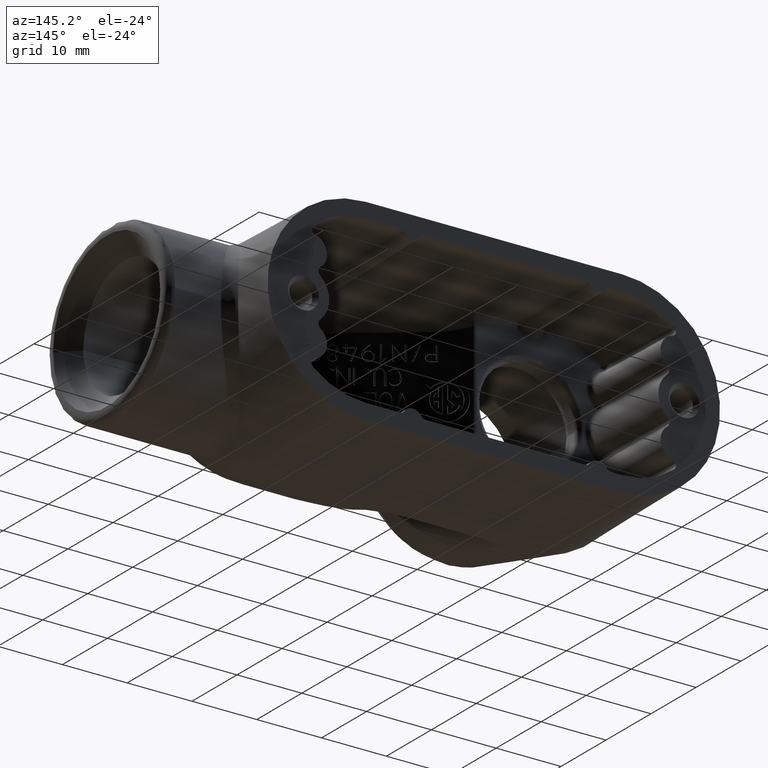
[diagram: clean part render]
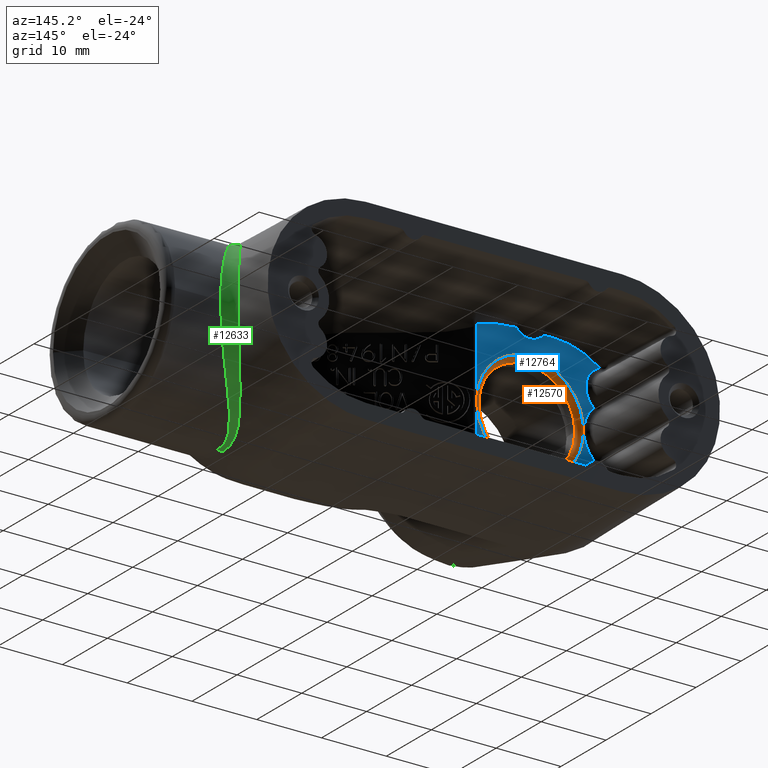
[diagram: same view with three faces highlighted in distinct colors, each labeled with its STEP entity id]
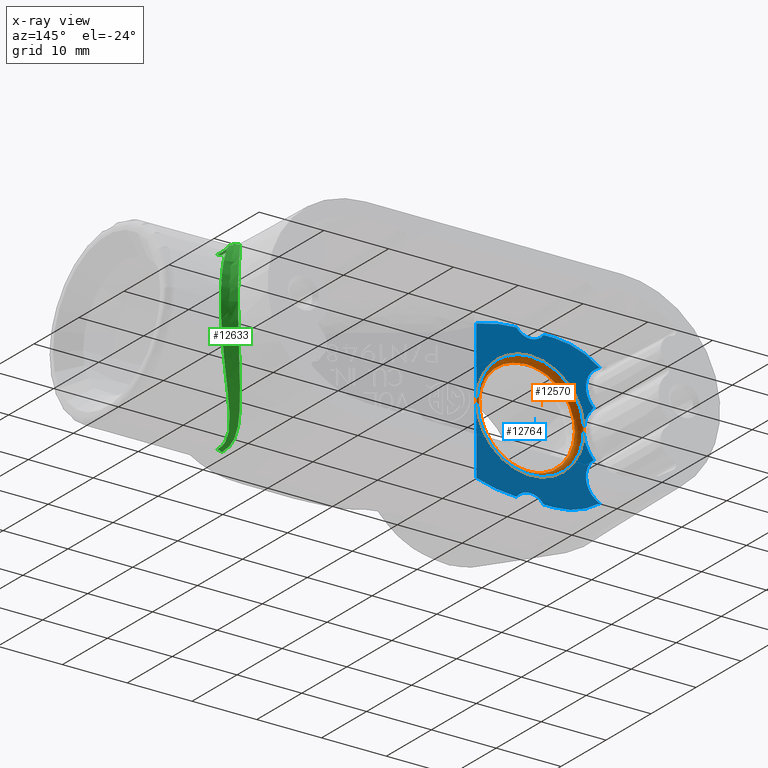
[diagram: x-ray of the same camera — body ghosted, the three highlighted faces saturated]
A machine part, auxiliary view with three faces highlighted in distinct colors.
The next image is the same camera in x-ray (body ghosted, the three faces saturated) — at least one of them is partly hidden behind the body in this view.
Their STEP definitions:

[orange] entity #12570 — the highlighted toroidal blend (fillet) surface has major radius 8.2674 mm and minor (blend) radius 0.7937 mm.
#116=TOROIDAL_SURFACE('',#13361,0.325487472069191,0.03125);
#269=CIRCLE('',#13362,0.325487472069191);
#270=CIRCLE('',#13363,0.03125);
#271=CIRCLE('',#13364,0.294248180663705);
#272=CIRCLE('',#13365,0.294248180663705);
#273=CIRCLE('',#13366,0.325487472069191);
#719=FACE_OUTER_BOUND('',#1518,.T.);
#1518=EDGE_LOOP('',(#8863,#8864,#8865,#8866,#8867,#8868,#8869));
#4106=B_SPLINE_CURVE_WITH_KNOTS('',3,(#22687,#22688,#22689,#22690,#22691,
#22692,#22693,#22694,#22695,#22696),.UNSPECIFIED.,.F.,.F.,(4,2,2,2,4),(-0.00671430756784818,
0.,0.0285357419641188,0.0570714839282373,0.0637857914960852),
 .UNSPECIFIED.);
#5289=VERTEX_POINT('',#22685);
#5290=VERTEX_POINT('',#22686);
#5291=VERTEX_POINT('',#22697);
#5292=VERTEX_POINT('',#22699);
#5293=VERTEX_POINT('',#22701);
#6681=EDGE_CURVE('',#5289,#5290,#4106,.T.);
#6682=EDGE_CURVE('',#5290,#5291,#269,.T.);
#6683=EDGE_CURVE('',#5291,#5292,#270,.T.);
#6684=EDGE_CURVE('',#5292,#5293,#271,.T.);
#6685=EDGE_CURVE('',#5293,#5292,#272,.T.);
#6686=EDGE_CURVE('',#5291,#5289,#273,.T.);
#8863=ORIENTED_EDGE('',*,*,#6681,.T.);
#8864=ORIENTED_EDGE('',*,*,#6682,.T.);
#8865=ORIENTED_EDGE('',*,*,#6683,.T.);
#8866=ORIENTED_EDGE('',*,*,#6684,.T.);
#8867=ORIENTED_EDGE('',*,*,#6685,.T.);
#8868=ORIENTED_EDGE('',*,*,#6683,.F.);
#8869=ORIENTED_EDGE('',*,*,#6686,.T.);
#12570=ADVANCED_FACE('',(#719),#116,.T.);
#13361=AXIS2_PLACEMENT_3D('',#22684,#14142,#14143);
#13362=AXIS2_PLACEMENT_3D('',#22698,#14144,#14145);
#13363=AXIS2_PLACEMENT_3D('',#22700,#14146,#14147);
#13364=AXIS2_PLACEMENT_3D('',#22702,#14148,#14149);
#13365=AXIS2_PLACEMENT_3D('',#22703,#14150,#14151);
#13366=AXIS2_PLACEMENT_3D('',#22704,#14152,#14153);
#14142=DIRECTION('center_axis',(1.50554864059299E-16,-1.,0.));
#14143=DIRECTION('ref_axis',(0.,0.,-1.));
#14144=DIRECTION('center_axis',(-1.50554864059299E-16,1.,0.));
#14145=DIRECTION('ref_axis',(1.,1.50554864059299E-16,0.));
#14146=DIRECTION('center_axis',(-1.,-1.50554864059299E-16,0.));
#14147=DIRECTION('ref_axis',(0.,0.,1.));
#14148=DIRECTION('center_axis',(2.97093207509641E-16,-1.,1.76528747896733E-31));
#14149=DIRECTION('ref_axis',(1.,2.97093207509641E-16,6.12323399573677E-17));
#14150=DIRECTION('center_axis',(2.97093207509641E-16,-1.,1.76528747896733E-31));
#14151=DIRECTION('ref_axis',(1.,2.97093207509641E-16,6.12323399573677E-17));
#14152=DIRECTION('center_axis',(-1.50554864059299E-16,1.,0.));
#14153=DIRECTION('ref_axis',(1.,1.50554864059299E-16,0.));
#22684=CARTESIAN_POINT('Origin',(-0.632993249839094,0.21875,0.));
#22685=CARTESIAN_POINT('',(-0.307801719897925,0.25,0.0138767189390914));
#22686=CARTESIAN_POINT('',(-0.307801719897925,0.25,-0.0138767189390914));
#22687=CARTESIAN_POINT('Ctrl Pts',(-0.307801719897925,0.25,0.0138767189390915));
#22688=CARTESIAN_POINT('Ctrl Pts',(-0.307782932461682,0.25,0.0129957765261983));
#22689=CARTESIAN_POINT('Ctrl Pts',(-0.30776593332208,0.249999983210847,
0.0121147993258679));
#22690=CARTESIAN_POINT('Ctrl Pts',(-0.307686078807785,0.249999852895804,
0.00748949785685515));
#22691=CARTESIAN_POINT('Ctrl Pts',(-0.307653748833917,0.249999649671064,
0.003744888589275));
#22692=CARTESIAN_POINT('Ctrl Pts',(-0.307653748833917,0.249999649671064,
-0.00374488858927499));
#22693=CARTESIAN_POINT('Ctrl Pts',(-0.307686078807785,0.249999852895804,
-0.00748949785685508));
#22694=CARTESIAN_POINT('Ctrl Pts',(-0.30776593332208,0.249999983210847,
-0.0121147993258679));
#22695=CARTESIAN_POINT('Ctrl Pts',(-0.307782932461682,0.25,-0.0129957765261983));
#22696=CARTESIAN_POINT('Ctrl Pts',(-0.307801719897925,0.25,-0.0138767189390915));
#22697=CARTESIAN_POINT('',(-0.632993249839094,0.25,0.325487472069191));
#22698=CARTESIAN_POINT('Origin',(-0.632993249839094,0.25,0.));
#22699=CARTESIAN_POINT('',(-0.632993249839094,0.217931970365379,0.294248180663705));
#22700=CARTESIAN_POINT('Origin',(-0.632993249839094,0.21875,0.325487472069191));
#22701=CARTESIAN_POINT('',(-0.927241430502799,0.217931970365379,-7.20700185209477E-17));
#22702=CARTESIAN_POINT('Origin',(-0.632993249839094,0.217931970365379,-1.80175046302369E-17));
#22703=CARTESIAN_POINT('Origin',(-0.632993249839094,0.217931970365379,-1.80175046302369E-17));
#22704=CARTESIAN_POINT('Origin',(-0.632993249839094,0.25,0.));

[blue] entity #12764 — the highlighted planar face has unit normal (-0, 1, 0).
#269=CIRCLE('',#13362,0.325487472069191);
#273=CIRCLE('',#13366,0.325487472069191);
#364=CIRCLE('',#13550,0.134823234273494);
#365=CIRCLE('',#13552,0.197323234273494);
#366=CIRCLE('',#13554,0.134823234273494);
#453=PLANE('',#13584);
#913=FACE_OUTER_BOUND('',#1717,.T.);
#1717=EDGE_LOOP('',(#9778,#9779,#9780,#9781,#9782,#9783,#9784,#9785,#9786,
#9787,#9788,#9789,#9790,#9791,#9792));
#2354=LINE('',#22707,#3084);
#2355=LINE('',#22728,#3085);
#3084=VECTOR('',#14156,0.393700787401575);
#3085=VECTOR('',#14157,0.393700787401575);
#4229=B_SPLINE_CURVE_WITH_KNOTS('',3,(#26643,#26644,#26645,#26646,#26647,
#26648),.UNSPECIFIED.,.F.,.F.,(4,1,1,4),(-0.000676497298268991,0.208406494544773,
0.347795155773468,0.48718021050049),.UNSPECIFIED.);
#4231=B_SPLINE_CURVE_WITH_KNOTS('',3,(#26680,#26681,#26682,#26683),
 .UNSPECIFIED.,.F.,.F.,(4,4),(0.930935175468239,1.08863976466621),
 .UNSPECIFIED.);
#4232=B_SPLINE_CURVE_WITH_KNOTS('',3,(#26708,#26709,#26710,#26711),
 .UNSPECIFIED.,.F.,.F.,(4,4),(0.172942727205798,0.930935175473943),
 .UNSPECIFIED.);
#4233=B_SPLINE_CURVE_WITH_KNOTS('',3,(#26743,#26744,#26745,#26746),
 .UNSPECIFIED.,.F.,.F.,(4,4),(0.157024305180341,0.915016753369077),
 .UNSPECIFIED.);
#4235=B_SPLINE_CURVE_WITH_KNOTS('',3,(#26777,#26778,#26779,#26780),
 .UNSPECIFIED.,.F.,.F.,(4,4),(-0.000680284195719948,0.157024305006008),
 .UNSPECIFIED.);
#4236=B_SPLINE_CURVE_WITH_KNOTS('',3,(#26817,#26818,#26819,#26820,#26821,
#26822),.UNSPECIFIED.,.F.,.F.,(4,1,1,4),(-0.000672906977871128,0.13871216393132,
0.278100825160015,0.487183817003057),.UNSPECIFIED.);
#4239=B_SPLINE_CURVE_WITH_KNOTS('',3,(#26969,#26970,#26971,#26972,#26973,
#26974,#26975),.UNSPECIFIED.,.F.,.F.,(4,1,1,1,4),(8.05473667216019,8.06154638964796,
8.48111045367779,8.69089248569271,8.69157460516386),.UNSPECIFIED.);
#4260=B_SPLINE_CURVE_WITH_KNOTS('',3,(#27365,#27366,#27367,#27368,#27369,
#27370,#27371),.UNSPECIFIED.,.F.,.F.,(4,1,1,1,4),(-0.000682129189718445,
0.,0.318077921315275,0.477116881972913,0.63615584263055),.UNSPECIFIED.);
#5289=VERTEX_POINT('',#22685);
#5290=VERTEX_POINT('',#22686);
#5291=VERTEX_POINT('',#22697);
#5294=VERTEX_POINT('',#22706);
#5295=VERTEX_POINT('',#22718);
#5398=VERTEX_POINT('',#25048);
#5403=VERTEX_POINT('',#25058);
#5406=VERTEX_POINT('',#25065);
#5409=VERTEX_POINT('',#25072);
#5412=VERTEX_POINT('',#25079);
#5413=VERTEX_POINT('',#25083);
#5416=VERTEX_POINT('',#25111);
#5448=VERTEX_POINT('',#26169);
#5507=VERTEX_POINT('',#26673);
#5508=VERTEX_POINT('',#26742);
#6682=EDGE_CURVE('',#5290,#5291,#269,.T.);
#6686=EDGE_CURVE('',#5291,#5289,#273,.T.);
#6687=EDGE_CURVE('',#5294,#5289,#2354,.T.);
#6690=EDGE_CURVE('',#5290,#5295,#2355,.T.);
#7006=EDGE_CURVE('',#5398,#5448,#4229,.T.);
#7008=EDGE_CURVE('',#5507,#5398,#4231,.T.);
#7009=EDGE_CURVE('',#5403,#5507,#4232,.T.);
#7010=EDGE_CURVE('',#5406,#5403,#364,.T.);
#7011=EDGE_CURVE('',#5409,#5406,#365,.T.);
#7012=EDGE_CURVE('',#5412,#5409,#366,.T.);
#7013=EDGE_CURVE('',#5508,#5412,#4233,.T.);
#7015=EDGE_CURVE('',#5413,#5508,#4235,.T.);
#7016=EDGE_CURVE('',#5416,#5413,#4236,.T.);
#7019=EDGE_CURVE('',#5295,#5416,#4239,.T.);
#7050=EDGE_CURVE('',#5448,#5294,#4260,.T.);
#9778=ORIENTED_EDGE('',*,*,#6682,.F.);
#9779=ORIENTED_EDGE('',*,*,#6690,.T.);
#9780=ORIENTED_EDGE('',*,*,#7019,.T.);
#9781=ORIENTED_EDGE('',*,*,#7016,.T.);
#9782=ORIENTED_EDGE('',*,*,#7015,.T.);
#9783=ORIENTED_EDGE('',*,*,#7013,.T.);
#9784=ORIENTED_EDGE('',*,*,#7012,.T.);
#9785=ORIENTED_EDGE('',*,*,#7011,.T.);
#9786=ORIENTED_EDGE('',*,*,#7010,.T.);
#9787=ORIENTED_EDGE('',*,*,#7009,.T.);
#9788=ORIENTED_EDGE('',*,*,#7008,.T.);
#9789=ORIENTED_EDGE('',*,*,#7006,.T.);
#9790=ORIENTED_EDGE('',*,*,#7050,.T.);
#9791=ORIENTED_EDGE('',*,*,#6687,.T.);
#9792=ORIENTED_EDGE('',*,*,#6686,.F.);
#12764=ADVANCED_FACE('',(#913),#453,.T.);
#13362=AXIS2_PLACEMENT_3D('',#22698,#14144,#14145);
#13366=AXIS2_PLACEMENT_3D('',#22704,#14152,#14153);
#13550=AXIS2_PLACEMENT_3D('',#26713,#14619,#14620);
#13552=AXIS2_PLACEMENT_3D('',#26715,#14623,#14624);
#13554=AXIS2_PLACEMENT_3D('',#26717,#14627,#14628);
#13584=AXIS2_PLACEMENT_3D('',#28891,#14749,#14750);
#14144=DIRECTION('center_axis',(-1.50554864059299E-16,1.,0.));
#14145=DIRECTION('ref_axis',(1.,1.50554864059299E-16,0.));
#14152=DIRECTION('center_axis',(-1.50554864059299E-16,1.,0.));
#14153=DIRECTION('ref_axis',(1.,1.50554864059299E-16,0.));
#14156=DIRECTION('',(0.,0.,-1.));
#14157=DIRECTION('',(0.,0.,-1.));
#14619=DIRECTION('center_axis',(1.50554864059299E-16,-1.,0.));
#14620=DIRECTION('ref_axis',(0.966158479891019,1.45459858599731E-16,0.257949203787636));
#14623=DIRECTION('center_axis',(1.50554864059299E-16,-1.,0.));
#14624=DIRECTION('ref_axis',(1.,1.50554864059299E-16,-5.55111512312578E-16));
#14627=DIRECTION('center_axis',(1.50554864059299E-16,-1.,0.));
#14628=DIRECTION('ref_axis',(0.966158479891019,1.45459858599731E-16,-0.257949203787636));
#14749=DIRECTION('center_axis',(-1.50554864059299E-16,1.,0.));
#14750=DIRECTION('ref_axis',(-1.,-1.50554864059299E-16,0.));
#22685=CARTESIAN_POINT('',(-0.307801719897925,0.25,0.0138767189390914));
#22686=CARTESIAN_POINT('',(-0.307801719897925,0.25,-0.0138767189390914));
#22697=CARTESIAN_POINT('',(-0.632993249839094,0.25,0.325487472069191));
#22698=CARTESIAN_POINT('Origin',(-0.632993249839094,0.25,0.));
#22704=CARTESIAN_POINT('Origin',(-0.632993249839094,0.25,0.));
#22706=CARTESIAN_POINT('',(-0.307801720030937,0.25,0.422238449802758));
#22707=CARTESIAN_POINT('',(-0.307801719897925,0.25,0.));
#22718=CARTESIAN_POINT('',(-0.307801720384532,0.25,-0.422238534236798));
#22728=CARTESIAN_POINT('',(-0.307801719897925,0.25,0.));
#25048=CARTESIAN_POINT('',(-0.715904819868252,0.25,0.462926765726505));
#25058=CARTESIAN_POINT('',(-1.05620989093114,0.25,0.369995528412793));
#25065=CARTESIAN_POINT('',(-1.01964079585015,0.25,0.142388146015375));
#25072=CARTESIAN_POINT('',(-1.01964079585015,0.25,-0.142388146015375));
#25079=CARTESIAN_POINT('',(-1.05620989093358,0.25,-0.369995528413783));
#25083=CARTESIAN_POINT('',(-0.715904819868252,0.25,-0.462926765726505));
#25111=CARTESIAN_POINT('',(-0.550082529557877,0.25,-0.462925630729568));
#26169=CARTESIAN_POINT('',(-0.550082533387867,0.25,0.462925625613976));
#26643=CARTESIAN_POINT('Ctrl Pts',(-0.715904819868252,0.25,0.462926765726505));
#26644=CARTESIAN_POINT('Ctrl Pts',(-0.699409883538997,0.25,0.440894385996398));
#26645=CARTESIAN_POINT('Ctrl Pts',(-0.656779282837471,0.25,0.416096620358835));
#26646=CARTESIAN_POINT('Ctrl Pts',(-0.590871695331938,0.25,0.425005433456623));
#26647=CARTESIAN_POINT('Ctrl Pts',(-0.561079074883333,0.25,0.448237911452386));
#26648=CARTESIAN_POINT('Ctrl Pts',(-0.550082533388136,0.25,0.462925625613907));
#26673=CARTESIAN_POINT('',(-0.777993249910127,0.25,0.462926765726506));
#26680=CARTESIAN_POINT('Ctrl Pts',(-0.777993249910127,0.25,0.462926765726506));
#26681=CARTESIAN_POINT('Ctrl Pts',(-0.757296956819356,0.25,0.462926765726506));
#26682=CARTESIAN_POINT('Ctrl Pts',(-0.736600983735963,0.25,0.462926765726505));
#26683=CARTESIAN_POINT('Ctrl Pts',(-0.715904819868252,0.25,0.462926765726505));
#26708=CARTESIAN_POINT('Ctrl Pts',(-1.05620989095624,0.25,0.369995528393918));
#26709=CARTESIAN_POINT('Ctrl Pts',(-0.976675862309713,0.25,0.429800819556773));
#26710=CARTESIAN_POINT('Ctrl Pts',(-0.877468058787682,0.25,0.462926765711725));
#26711=CARTESIAN_POINT('Ctrl Pts',(-0.777993249907881,0.25,0.462926765726506));
#26713=CARTESIAN_POINT('Origin',(-1.10698041455779,0.25,0.245096935824079));
#26715=CARTESIAN_POINT('Origin',(-1.15625,0.25,0.));
#26717=CARTESIAN_POINT('Origin',(-1.10698041455779,0.25,-0.245096935824079));
#26742=CARTESIAN_POINT('',(-0.777993249910127,0.25,-0.462926765726506));
#26743=CARTESIAN_POINT('Ctrl Pts',(-0.77799324998116,0.25,-0.462926765726506));
#26744=CARTESIAN_POINT('Ctrl Pts',(-0.877468058850435,0.25,-0.462926765695473));
#26745=CARTESIAN_POINT('Ctrl Pts',(-0.976675862024321,0.25,-0.429800819771789));
#26746=CARTESIAN_POINT('Ctrl Pts',(-1.05620989093225,0.25,-0.369995528412014));
#26777=CARTESIAN_POINT('Ctrl Pts',(-0.715904819868252,0.25,-0.462926765726505));
#26778=CARTESIAN_POINT('Ctrl Pts',(-0.736600983807513,0.25,-0.462926765726505));
#26779=CARTESIAN_POINT('Ctrl Pts',(-0.757296956821266,0.25,-0.462926765726505));
#26780=CARTESIAN_POINT('Ctrl Pts',(-0.777993249912524,0.25,-0.462926765726505));
#26817=CARTESIAN_POINT('Ctrl Pts',(-0.550082529558144,0.25,-0.4629256307295));
#26818=CARTESIAN_POINT('Ctrl Pts',(-0.561079071425096,0.25,-0.448237914148838));
#26819=CARTESIAN_POINT('Ctrl Pts',(-0.590871693146042,0.25,-0.425005433752581));
#26820=CARTESIAN_POINT('Ctrl Pts',(-0.656779282837879,0.25,-0.416096620358654));
#26821=CARTESIAN_POINT('Ctrl Pts',(-0.699409883539824,0.25,-0.440894385997502));
#26822=CARTESIAN_POINT('Ctrl Pts',(-0.715904819868252,0.25,-0.462926765726505));
#26969=CARTESIAN_POINT('Ctrl Pts',(-0.307801721543434,0.25,-0.422238533773244));
#26970=CARTESIAN_POINT('Ctrl Pts',(-0.30862670578307,0.25,-0.422478995483481));
#26971=CARTESIAN_POINT('Ctrl Pts',(-0.360218101019126,0.25,-0.437667629786858));
#26972=CARTESIAN_POINT('Ctrl Pts',(-0.439791180020497,0.25,-0.456428600372501));
#26973=CARTESIAN_POINT('Ctrl Pts',(-0.522373801046517,0.25,-0.462870249656314));
#26974=CARTESIAN_POINT('Ctrl Pts',(-0.549992969256068,0.25,-0.462925659279155));
#26975=CARTESIAN_POINT('Ctrl Pts',(-0.550082529557877,0.25,-0.462925630729568));
#27365=CARTESIAN_POINT('Ctrl Pts',(-0.550082533387867,0.25,0.462925625613976));
#27366=CARTESIAN_POINT('Ctrl Pts',(-0.549992971809314,0.25,0.462925654065317));
#27367=CARTESIAN_POINT('Ctrl Pts',(-0.508141146236953,0.25,0.462845736244511));
#27368=CARTESIAN_POINT('Ctrl Pts',(-0.445765677502982,0.25,0.455766631962695));
#27369=CARTESIAN_POINT('Ctrl Pts',(-0.365833910453164,0.25,0.438949219435073));
#27370=CARTESIAN_POINT('Ctrl Pts',(-0.327068989345177,0.25,0.427854356615969));
#27371=CARTESIAN_POINT('Ctrl Pts',(-0.307801720041352,0.25,0.422238449767024));
#28891=CARTESIAN_POINT('Origin',(-0.298336201319076,0.25,0.));

[green] entity #12633 — the highlighted face is a freeform B-spline surface patch.
#782=FACE_OUTER_BOUND('',#1582,.T.);
#1582=EDGE_LOOP('',(#9174,#9175,#9176,#9177,#9178,#9179,#9180));
#4125=B_SPLINE_CURVE_WITH_KNOTS('',3,(#23444,#23445,#23446,#23447,#23448,
#23449,#23450),.UNSPECIFIED.,.F.,.F.,(4,3,4),(0.,0.0386602350355314,0.0773201619034632),
 .UNSPECIFIED.);
#4126=B_SPLINE_CURVE_WITH_KNOTS('',3,(#23453,#23454,#23455,#23456,#23457,
#23458,#23459,#23460,#23461,#23462,#23463,#23464,#23465,#23466,#23467,#23468,
#23469,#23470,#23471,#23472,#23473,#23474,#23475,#23476,#23477,#23478,#23479),
 .UNSPECIFIED.,.F.,.F.,(4,2,2,2,2,2,2,2,2,2,2,2,1,4),(2.5596025696217,2.55960972929871,
2.88942123409466,2.89328118235396,3.23483853613791,3.24278321452374,3.61057973705938,
3.62285822125097,4.03265989842659,4.04945644188645,4.54408076948189,4.56793568244085,
4.84423299931018,5.12053031617951),.UNSPECIFIED.);
#4127=B_SPLINE_CURVE_WITH_KNOTS('',3,(#23482,#23483,#23484,#23485,#23486,
#23487,#23488,#23489,#23490,#23491,#23492,#23493,#23494,#23495,#23496,#23497,
#23498,#23499,#23500,#23501,#23502,#23503,#23504,#23505,#23506),
 .UNSPECIFIED.,.F.,.F.,(4,1,2,2,2,2,2,2,2,2,2,2,4),(-0.00138454993409798,
0.274968844726991,0.551322239388081,0.575160353584437,1.0697638680224,1.08657309881348,
1.49641283870781,1.5086824499646,1.8764133871427,1.88436137843578,2.22596947820566,
2.22982867987252,2.5596025696217),.UNSPECIFIED.);
#4130=B_SPLINE_CURVE_WITH_KNOTS('',3,(#23706,#23707,#23708,#23709,#23710,
#23711,#23712),.UNSPECIFIED.,.F.,.F.,(4,3,4),(-0.000358483194853121,0.0383038295640923,
0.0769664506906738),.UNSPECIFIED.);
#4137=B_SPLINE_CURVE_WITH_KNOTS('',3,(#24362,#24363,#24364,#24365),
 .UNSPECIFIED.,.F.,.F.,(4,4),(-0.751560426112942,-0.751521955209909),
 .UNSPECIFIED.);
#4140=B_SPLINE_CURVE_WITH_KNOTS('',3,(#24509,#24510,#24511,#24512),
 .UNSPECIFIED.,.F.,.F.,(4,4),(-4.09342456959544,-4.09338616737692),
 .UNSPECIFIED.);
#4141=B_SPLINE_CURVE_WITH_KNOTS('',3,(#24753,#24754,#24755,#24756,#24757,
#24758,#24759,#24760,#24761,#24762,#24763,#24764,#24765,#24766,#24767,#24768,
#24769,#24770,#24771,#24772,#24773,#24774,#24775,#24776,#24777,#24778,#24779,
#24780,#24781,#24782,#24783,#24784,#24785,#24786,#24787,#24788,#24789,#24790,
#24791,#24792,#24793,#24794,#24795,#24796,#24797,#24798,#24799,#24800),
 .UNSPECIFIED.,.F.,.F.,(4,1,2,2,2,2,2,2,2,2,2,2,2,2,2,2,2,2,2,2,2,2,2,1,
4),(-5.11914569101044,-4.84423299931018,-4.56793568244085,-4.54408076948189,
-4.04945644188645,-4.03265989842659,-3.62285822125097,-3.61057973705938,
-3.24278321452374,-3.23483853613791,-2.89328118235396,-2.88942123409466,
-2.55960972929871,-2.22982867987252,-2.22596947820566,-1.88436137843578,
-1.8764133871427,-1.5086824499646,-1.49641283870781,-1.08657309881348,-1.0697638680224,
-0.575160353584437,-0.551322239388081,-0.274968844726991,-5.66075593402601E-8),
 .UNSPECIFIED.);
#5371=VERTEX_POINT('',#23375);
#5373=VERTEX_POINT('',#23410);
#5374=VERTEX_POINT('',#23452);
#5375=VERTEX_POINT('',#23481);
#5376=VERTEX_POINT('',#23672);
#5388=VERTEX_POINT('',#24361);
#5390=VERTEX_POINT('',#24492);
#6816=EDGE_CURVE('',#5373,#5371,#4125,.T.);
#6817=EDGE_CURVE('',#5374,#5371,#4126,.T.);
#6819=EDGE_CURVE('',#5375,#5374,#4127,.T.);
#6822=EDGE_CURVE('',#5375,#5376,#4130,.T.);
#6844=EDGE_CURVE('',#5376,#5388,#4137,.T.);
#6848=EDGE_CURVE('',#5390,#5373,#4140,.T.);
#6849=EDGE_CURVE('',#5390,#5388,#4141,.T.);
#9174=ORIENTED_EDGE('',*,*,#6849,.T.);
#9175=ORIENTED_EDGE('',*,*,#6844,.F.);
#9176=ORIENTED_EDGE('',*,*,#6822,.F.);
#9177=ORIENTED_EDGE('',*,*,#6819,.T.);
#9178=ORIENTED_EDGE('',*,*,#6817,.T.);
#9179=ORIENTED_EDGE('',*,*,#6816,.F.);
#9180=ORIENTED_EDGE('',*,*,#6848,.F.);
#12122=B_SPLINE_SURFACE_WITH_KNOTS('',3,3,((#24513,#24514,#24515,#24516,
#24517,#24518,#24519,#24520,#24521,#24522,#24523,#24524,#24525,#24526,#24527,
#24528,#24529,#24530,#24531,#24532,#24533,#24534,#24535,#24536,#24537,#24538,
#24539,#24540,#24541,#24542,#24543,#24544,#24545,#24546,#24547,#24548,#24549,
#24550,#24551,#24552,#24553,#24554,#24555,#24556,#24557,#24558,#24559,#24560),
(#24561,#24562,#24563,#24564,#24565,#24566,#24567,#24568,#24569,#24570,
#24571,#24572,#24573,#24574,#24575,#24576,#24577,#24578,#24579,#24580,#24581,
#24582,#24583,#24584,#24585,#24586,#24587,#24588,#24589,#24590,#24591,#24592,
#24593,#24594,#24595,#24596,#24597,#24598,#24599,#24600,#24601,#24602,#24603,
#24604,#24605,#24606,#24607,#24608),(#24609,#24610,#24611,#24612,#24613,
#24614,#24615,#24616,#24617,#24618,#24619,#24620,#24621,#24622,#24623,#24624,
#24625,#24626,#24627,#24628,#24629,#24630,#24631,#24632,#24633,#24634,#24635,
#24636,#24637,#24638,#24639,#24640,#24641,#24642,#24643,#24644,#24645,#24646,
#24647,#24648,#24649,#24650,#24651,#24652,#24653,#24654,#24655,#24656),
(#24657,#24658,#24659,#24660,#24661,#24662,#24663,#24664,#24665,#24666,
#24667,#24668,#24669,#24670,#24671,#24672,#24673,#24674,#24675,#24676,#24677,
#24678,#24679,#24680,#24681,#24682,#24683,#24684,#24685,#24686,#24687,#24688,
#24689,#24690,#24691,#24692,#24693,#24694,#24695,#24696,#24697,#24698,#24699,
#24700,#24701,#24702,#24703,#24704),(#24705,#24706,#24707,#24708,#24709,
#24710,#24711,#24712,#24713,#24714,#24715,#24716,#24717,#24718,#24719,#24720,
#24721,#24722,#24723,#24724,#24725,#24726,#24727,#24728,#24729,#24730,#24731,
#24732,#24733,#24734,#24735,#24736,#24737,#24738,#24739,#24740,#24741,#24742,
#24743,#24744,#24745,#24746,#24747,#24748,#24749,#24750,#24751,#24752)),
 .UNSPECIFIED.,.F.,.F.,.F.,(4,1,4),(4,1,2,2,2,2,2,2,2,2,2,2,2,2,2,2,2,2,
2,2,2,2,2,1,4),(0.,0.571428571428571,1.),(-0.00138454993409798,0.274968844726991,
0.551322239388081,0.575160353584437,1.0697638680224,1.08657309881348,1.49641283870781,
1.5086824499646,1.8764133871427,1.88436137843578,2.22596947820566,2.22982867987252,
2.55960972929871,2.88942123409466,2.89328118235396,3.23483853613791,3.24278321452374,
3.61057973705938,3.62285822125097,4.03265989842659,4.04945644188645,4.54408076948189,
4.56793568244085,4.84423299931018,5.12053031617951),.UNSPECIFIED.);
#12633=ADVANCED_FACE('',(#782),#12122,.T.);
#23375=CARTESIAN_POINT('',(1.09484638353954,0.000515358720818232,-0.531249750028542));
#23410=CARTESIAN_POINT('',(1.06563121717223,1.13390317848219E-7,-0.538498574643502));
#23444=CARTESIAN_POINT('Ctrl Pts',(1.06563121657664,7.81172784635159E-8,
-0.538498566849966));
#23445=CARTESIAN_POINT('Ctrl Pts',(1.07011582541126,7.586315853505E-5,-0.536127247590756));
#23446=CARTESIAN_POINT('Ctrl Pts',(1.07487475593997,0.000157811276536742,
-0.534319525286115));
#23447=CARTESIAN_POINT('Ctrl Pts',(1.07979810778953,0.0002445345107989,
-0.53309795405351));
#23448=CARTESIAN_POINT('Ctrl Pts',(1.08472142039418,0.000331257053774658,
-0.531876392558267));
#23449=CARTESIAN_POINT('Ctrl Pts',(1.08977375547078,0.000422123967669972,
-0.531249840474407));
#23450=CARTESIAN_POINT('Ctrl Pts',(1.09484638353954,0.000515358720818261,
-0.531249750028543));
#23452=CARTESIAN_POINT('',(1.44198370594496,0.53125,1.05578196350255E-11));
#23453=CARTESIAN_POINT('Ctrl Pts',(1.44198824255975,0.531254723885869,1.7819040332574E-10));
#23454=CARTESIAN_POINT('Ctrl Pts',(1.44198824259379,0.531254723886049,-8.4063513815539E-7));
#23455=CARTESIAN_POINT('Ctrl Pts',(1.44198824262583,0.531254723884204,-1.68144848475965E-6));
#23456=CARTESIAN_POINT('Ctrl Pts',(1.44198962606826,0.531254545714976,-0.0387347053523534));
#23457=CARTESIAN_POINT('Ctrl Pts',(1.43773556033279,0.526960053088751,-0.0774293426715802));
#23458=CARTESIAN_POINT('Ctrl Pts',(1.42960145691318,0.518651110049859,-0.115019408645335));
#23459=CARTESIAN_POINT('Ctrl Pts',(1.42950694811989,0.518554564811666,-0.115454050089526));
#23460=CARTESIAN_POINT('Ctrl Pts',(1.42100070920645,0.509864472696457,-0.154339224685141));
#23461=CARTESIAN_POINT('Ctrl Pts',(1.40858549579925,0.497125137340451,-0.191094914814882));
#23462=CARTESIAN_POINT('Ctrl Pts',(1.39289696135095,0.480775119756624,-0.22601566051892));
#23463=CARTESIAN_POINT('Ctrl Pts',(1.39253884272529,0.480401810735695,-0.226808229166567));
#23464=CARTESIAN_POINT('Ctrl Pts',(1.37552290275675,0.462657566181561,-0.264229847187321));
#23465=CARTESIAN_POINT('Ctrl Pts',(1.35554986507402,0.44159930431728,-0.2978222895033));
#23466=CARTESIAN_POINT('Ctrl Pts',(1.33294005971022,0.417035135314567,-0.329103476746939));
#23467=CARTESIAN_POINT('Ctrl Pts',(1.33220733605161,0.416238504737661,-0.330110637999773));
#23468=CARTESIAN_POINT('Ctrl Pts',(1.30695036903417,0.388740771322652,-0.364603508562232));
#23469=CARTESIAN_POINT('Ctrl Pts',(1.28009131251189,0.358736210190669,-0.394013577223369));
#23470=CARTESIAN_POINT('Ctrl Pts',(1.25164544448105,0.32467966175267,-0.420486390586694));
#23471=CARTESIAN_POINT('Ctrl Pts',(1.2505233431849,0.323334142538708,-0.421522477757595));
#23472=CARTESIAN_POINT('Ctrl Pts',(1.21642130883642,0.282197030284887,-0.452841127623616));
#23473=CARTESIAN_POINT('Ctrl Pts',(1.18247001867763,0.238561833742733,-0.477470514175812));
#23474=CARTESIAN_POINT('Ctrl Pts',(1.15185597658387,0.18779394837528,-0.496947935218113));
#23475=CARTESIAN_POINT('Ctrl Pts',(1.1504614306893,0.1854456295443,-0.497829093766344));
#23476=CARTESIAN_POINT('Ctrl Pts',(1.1331257299419,0.155744118852049,-0.508722107943016));
#23477=CARTESIAN_POINT('Ctrl Pts',(1.10430348699231,0.0978825936226655,
-0.524999880543966));
#23478=CARTESIAN_POINT('Ctrl Pts',(1.09352266590245,0.0329349542049872,
-0.531218300185494));
#23479=CARTESIAN_POINT('Ctrl Pts',(1.09484638353954,0.000515358720818278,
-0.531249750028542));
#23481=CARTESIAN_POINT('',(1.09481198264718,0.000515358413872132,0.53124975002884));
#23482=CARTESIAN_POINT('Ctrl Pts',(1.09481198264718,0.000515358413872082,
0.53124975002884));
#23483=CARTESIAN_POINT('Ctrl Pts',(1.09348805202518,0.0329419799010696,
0.531218293388689));
#23484=CARTESIAN_POINT('Ctrl Pts',(1.10426947074821,0.0978919699810122,
0.524999011675481));
#23485=CARTESIAN_POINT('Ctrl Pts',(1.13310480688384,0.155769424703123,0.508714981328773));
#23486=CARTESIAN_POINT('Ctrl Pts',(1.15045020067096,0.185468989149159,0.497820556005448));
#23487=CARTESIAN_POINT('Ctrl Pts',(1.15184444528232,0.187815449296363,0.496940019082832));
#23488=CARTESIAN_POINT('Ctrl Pts',(1.18247066977732,0.2385723083198,0.477464144011987));
#23489=CARTESIAN_POINT('Ctrl Pts',(1.21645065688196,0.282191076095375,0.452844549648521));
#23490=CARTESIAN_POINT('Ctrl Pts',(1.25054731677745,0.323329707341608,0.421525910106024));
#23491=CARTESIAN_POINT('Ctrl Pts',(1.25167005236103,0.324676336653069,0.420488975546507));
#23492=CARTESIAN_POINT('Ctrl Pts',(1.28011334652974,0.358739995621142,0.394011200720177));
#23493=CARTESIAN_POINT('Ctrl Pts',(1.30694142628414,0.388758809420515,0.364585360463181));
#23494=CARTESIAN_POINT('Ctrl Pts',(1.33219481611174,0.416257472280231,0.330086730534925));
#23495=CARTESIAN_POINT('Ctrl Pts',(1.33292690630494,0.417053513038069,0.329080210894426));
#23496=CARTESIAN_POINT('Ctrl Pts',(1.35552944826009,0.441611743648162,0.297802858405352));
#23497=CARTESIAN_POINT('Ctrl Pts',(1.37552358451814,0.462659665438992,0.26422440502048));
#23498=CARTESIAN_POINT('Ctrl Pts',(1.39254477600008,0.480400296153948,0.226811418789922));
#23499=CARTESIAN_POINT('Ctrl Pts',(1.39290319519851,0.480773738252337,0.226018575574346));
#23500=CARTESIAN_POINT('Ctrl Pts',(1.40860087093406,0.497125810059087,0.191093999474745));
#23501=CARTESIAN_POINT('Ctrl Pts',(1.42100612186563,0.509867895715512,0.154329790464192));
#23502=CARTESIAN_POINT('Ctrl Pts',(1.4295079478453,0.518558018942333,0.11543857099372));
#23503=CARTESIAN_POINT('Ctrl Pts',(1.42960238035106,0.518654536082798,0.115003999900371));
#23504=CARTESIAN_POINT('Ctrl Pts',(1.43773050047467,0.526961552025592,0.0774172539572895));
#23505=CARTESIAN_POINT('Ctrl Pts',(1.44198667456253,0.531254715614486,0.0387277641967416));
#23506=CARTESIAN_POINT('Ctrl Pts',(1.44198824255975,0.531254723885869,1.7819040332574E-10));
#23672=CARTESIAN_POINT('',(1.0655951801601,2.7597662244891E-16,0.538499439806052));
#23706=CARTESIAN_POINT('Ctrl Pts',(1.09481198264718,0.000515358413872115,
0.53124975002884));
#23707=CARTESIAN_POINT('Ctrl Pts',(1.08973904503436,0.000422123098804889,
0.531249840475196));
#23708=CARTESIAN_POINT('Ctrl Pts',(1.08468640307204,0.000331252331550332,
0.531876467280558));
#23709=CARTESIAN_POINT('Ctrl Pts',(1.07976280848805,0.000244528417183795,
0.533098175586725));
#23710=CARTESIAN_POINT('Ctrl Pts',(1.07483917463384,0.00015780381111398,
0.534319893637144));
#23711=CARTESIAN_POINT('Ctrl Pts',(1.07007999317089,7.58569568092409E-5,
0.536127832738706));
#23712=CARTESIAN_POINT('Ctrl Pts',(1.06559517974014,8.04566399724066E-8,
0.538499435128601));
#24361=CARTESIAN_POINT('',(1.0655817541967,2.1860617037565E-16,0.538506539333196));
#24362=CARTESIAN_POINT('Ctrl Pts',(1.06563835999706,4.37095678986282E-16,
0.538561192940571));
#24363=CARTESIAN_POINT('Ctrl Pts',(1.06563388448173,4.37094223233834E-16,
0.53856355892548));
#24364=CARTESIAN_POINT('Ctrl Pts',(1.06562940891414,4.37097134712472E-16,
0.538565924863282));
#24365=CARTESIAN_POINT('Ctrl Pts',(1.06562493329426,4.37095678986282E-16,
0.53856829075398));
#24492=CARTESIAN_POINT('',(1.06561779169412,5.15949798240953E-16,-0.538505673405034));
#24509=CARTESIAN_POINT('Ctrl Pts',(1.06563910843706,3.93386111087654E-16,
-0.538577551476924));
#24510=CARTESIAN_POINT('Ctrl Pts',(1.06564358331696,3.93387568571253E-16,
-0.538575185869019));
#24511=CARTESIAN_POINT('Ctrl Pts',(1.0656480581572,3.93384653585957E-16,
-0.538572820207427));
#24512=CARTESIAN_POINT('Ctrl Pts',(1.06565253295778,3.93386111087654E-16,
-0.538570454492145));
#24513=CARTESIAN_POINT('Ctrl Pts',(1.06559980338808,-0.00054474385675528,
0.538508046666727));
#24514=CARTESIAN_POINT('Ctrl Pts',(1.06437050172025,0.0356968446721466,
0.53842284737174));
#24515=CARTESIAN_POINT('Ctrl Pts',(1.0740942642065,0.10828813356248,0.532010475704952));
#24516=CARTESIAN_POINT('Ctrl Pts',(1.10019224217317,0.172974808729374,0.515410628080135));
#24517=CARTESIAN_POINT('Ctrl Pts',(1.11588928440568,0.2061685029072,0.50432385972509));
#24518=CARTESIAN_POINT('Ctrl Pts',(1.11715103675256,0.208791022127494,0.503427862816578));
#24519=CARTESIAN_POINT('Ctrl Pts',(1.14486646129155,0.26551939116193,0.483613739141133));
#24520=CARTESIAN_POINT('Ctrl Pts',(1.1756273136088,0.314269891112158,0.458594354778794));
#24521=CARTESIAN_POINT('Ctrl Pts',(1.20643712988523,0.360248453643127,0.426852893510491));
#24522=CARTESIAN_POINT('Ctrl Pts',(1.20745162334856,0.361753512687352,0.425802026538471));
#24523=CARTESIAN_POINT('Ctrl Pts',(1.23315215981794,0.399824743883141,0.398969804609049));
#24524=CARTESIAN_POINT('Ctrl Pts',(1.25742423309455,0.433375240651195,0.369128158907135));
#24525=CARTESIAN_POINT('Ctrl Pts',(1.2802625791928,0.464109069014152,0.33416347795551));
#24526=CARTESIAN_POINT('Ctrl Pts',(1.2809246455926,0.464998762465759,0.33314339083132));
#24527=CARTESIAN_POINT('Ctrl Pts',(1.30136556476394,0.492446225709648,0.30144498423016));
#24528=CARTESIAN_POINT('Ctrl Pts',(1.31944808505619,0.515970377804549,0.267414017802625));
#24529=CARTESIAN_POINT('Ctrl Pts',(1.33481833878995,0.535798130517009,0.229564843774572));
#24530=CARTESIAN_POINT('Ctrl Pts',(1.33514199903015,0.536215506695447,0.228762761640121));
#24531=CARTESIAN_POINT('Ctrl Pts',(1.34931751192539,0.554491343778697,0.193431526856445));
#24532=CARTESIAN_POINT('Ctrl Pts',(1.36053521755218,0.568732477300707,0.156197469451513));
#24533=CARTESIAN_POINT('Ctrl Pts',(1.36821898745166,0.57844494874683,0.116826686358483));
#24534=CARTESIAN_POINT('Ctrl Pts',(1.36830433393011,0.57855282064737,0.116386762575508));
#24535=CARTESIAN_POINT('Ctrl Pts',(1.37565095049622,0.587837317194479,0.0783359941574649));
#24536=CARTESIAN_POINT('Ctrl Pts',(1.37949685710016,0.592635555468478,0.0391575355424393));
#24537=CARTESIAN_POINT('Ctrl Pts',(1.37949936672924,0.592635157213845,-0.0391708247461346));
#24538=CARTESIAN_POINT('Ctrl Pts',(1.37565533564918,0.587835442722507,-0.0783504809956585));
#24539=CARTESIAN_POINT('Ctrl Pts',(1.36830490323961,0.578548991521178,-0.116396468423108));
#24540=CARTESIAN_POINT('Ctrl Pts',(1.36821950428577,0.578441088217834,-0.116836379854339));
#24541=CARTESIAN_POINT('Ctrl Pts',(1.3605332609185,0.568728651344847,-0.156193473042543));
#24542=CARTESIAN_POINT('Ctrl Pts',(1.34930601227202,0.554490591615561,-0.193424800084322));
#24543=CARTESIAN_POINT('Ctrl Pts',(1.33513170950799,0.536217050537943,-0.228769316058003));
#24544=CARTESIAN_POINT('Ctrl Pts',(1.3348081622767,0.535799823074076,-0.229571506114497));
#24545=CARTESIAN_POINT('Ctrl Pts',(1.31943498707772,0.515968031969078,-0.267447763297692));
#24546=CARTESIAN_POINT('Ctrl Pts',(1.30137294026012,0.49243232351179,-0.301485676736406));
#24547=CARTESIAN_POINT('Ctrl Pts',(1.2809413853173,0.464978223009776,-0.333164021942025));
#24548=CARTESIAN_POINT('Ctrl Pts',(1.28027925503453,0.464087870435875,-0.334183993080328));
#24549=CARTESIAN_POINT('Ctrl Pts',(1.25745548681027,0.433355080026676,-0.369116479562749));
#24550=CARTESIAN_POINT('Ctrl Pts',(1.23315509025393,0.399820513360726,-0.398946711298462));
#24551=CARTESIAN_POINT('Ctrl Pts',(1.20743247058548,0.3617572300559,-0.425793662431331));
#24552=CARTESIAN_POINT('Ctrl Pts',(1.20641778602486,0.36025341155077,-0.426844440649656));
#24553=CARTESIAN_POINT('Ctrl Pts',(1.17557936861903,0.314276546280474,-0.458609229560437));
#24554=CARTESIAN_POINT('Ctrl Pts',(1.14484358268758,0.265507682627139,-0.483636483225523));
#24555=CARTESIAN_POINT('Ctrl Pts',(1.11715143294362,0.20876698874346,-0.503444129604882));
#24556=CARTESIAN_POINT('Ctrl Pts',(1.11588994667283,0.20614239228455,-0.50434039655804));
#24557=CARTESIAN_POINT('Ctrl Pts',(1.10020849490584,0.172946523461622,-0.51542126488347));
#24558=CARTESIAN_POINT('Ctrl Pts',(1.07412923670063,0.108277653050809,-0.532010850911592));
#24559=CARTESIAN_POINT('Ctrl Pts',(1.06440685506842,0.0356889918695435,
-0.538421938755899));
#24560=CARTESIAN_POINT('Ctrl Pts',(1.06563584016564,-0.000544744181586507,
-0.538507181643532));
#24561=CARTESIAN_POINT('Ctrl Pts',(1.07071759477728,-0.000360415984983568,
0.535797983574404));
#24562=CARTESIAN_POINT('Ctrl Pts',(1.06947635637353,0.0351234568358989,
0.535746061250919));
#24563=CARTESIAN_POINT('Ctrl Pts',(1.07932614607547,0.106201817911159,0.529179201193128));
#24564=CARTESIAN_POINT('Ctrl Pts',(1.10567156024703,0.169451219301067,0.512100886454537));
#24565=CARTESIAN_POINT('Ctrl Pts',(1.12147142589906,0.201870324378061,0.500711231624075));
#24566=CARTESIAN_POINT('Ctrl Pts',(1.12274137825353,0.204431279228418,0.499790616270371));
#24567=CARTESIAN_POINT('Ctrl Pts',(1.15063233718623,0.259823827178684,0.479438622313096));
#24568=CARTESIAN_POINT('Ctrl Pts',(1.18146080329749,0.307304199084336,0.453777584207781));
#24569=CARTESIAN_POINT('Ctrl Pts',(1.21207908712624,0.351898432620126,0.421441905053417));
#24570=CARTESIAN_POINT('Ctrl Pts',(1.21308708216423,0.353357949207413,0.420371660563679));
#24571=CARTESIAN_POINT('Ctrl Pts',(1.23861668994156,0.390273082343951,0.393051498220657));
#24572=CARTESIAN_POINT('Ctrl Pts',(1.26254597942409,0.42266653837904,0.362812744704406));
#24573=CARTESIAN_POINT('Ctrl Pts',(1.28484809116603,0.45218225221929,0.327696190734368));
#24574=CARTESIAN_POINT('Ctrl Pts',(1.28549444131385,0.453036540284438,0.32667202121424));
#24575=CARTESIAN_POINT('Ctrl Pts',(1.30544733654337,0.479389894796095,0.294851927962754));
#24576=CARTESIAN_POINT('Ctrl Pts',(1.32291246916918,0.50183386169271,0.260919787191389));
#24577=CARTESIAN_POINT('Ctrl Pts',(1.33761000874375,0.520639362327507,0.223539701663707));
#24578=CARTESIAN_POINT('Ctrl Pts',(1.33791953355231,0.521035245422701,0.222747795267234));
#24579=CARTESIAN_POINT('Ctrl Pts',(1.35147165319946,0.538366721287439,0.187863029837653));
#24580=CARTESIAN_POINT('Ctrl Pts',(1.36206196350633,0.551767601004914,0.151403983320007));
#24581=CARTESIAN_POINT('Ctrl Pts',(1.36927702011865,0.560875774246482,0.113121835141848));
#24582=CARTESIAN_POINT('Ctrl Pts',(1.36935732538578,0.560977079912747,0.112694038345749));
#24583=CARTESIAN_POINT('Ctrl Pts',(1.37625130723709,0.569680075538255,0.075692901978185));
#24584=CARTESIAN_POINT('Ctrl Pts',(1.37982740855893,0.574151253507114,0.0378290160442347));
#24585=CARTESIAN_POINT('Ctrl Pts',(1.37982983368079,0.57415081164798,-0.0378419941559662));
#24586=CARTESIAN_POINT('Ctrl Pts',(1.37625562276303,0.569678207790186,-0.0757068292717812));
#24587=CARTESIAN_POINT('Ctrl Pts',(1.36935840622093,0.560973710351017,-0.112703532783948));
#24588=CARTESIAN_POINT('Ctrl Pts',(1.36927805290964,0.560872377173656,-0.113131321939738));
#24589=CARTESIAN_POINT('Ctrl Pts',(1.3620611022166,0.551764632303399,-0.151400396158861));
#24590=CARTESIAN_POINT('Ctrl Pts',(1.3514608149656,0.538366522951614,-0.187857445485453));
#24591=CARTESIAN_POINT('Ctrl Pts',(1.33790846913116,0.521036152168595,-0.22275330224318));
#24592=CARTESIAN_POINT('Ctrl Pts',(1.33759902930826,0.520640390611674,-0.223545273170729));
#24593=CARTESIAN_POINT('Ctrl Pts',(1.3228972538058,0.50182990879756,-0.260949758406709));
#24594=CARTESIAN_POINT('Ctrl Pts',(1.30545404497622,0.479375339560088,-0.294888156969952));
#24595=CARTESIAN_POINT('Ctrl Pts',(1.28551168411385,0.453016994900918,-0.32669335008123));
#24596=CARTESIAN_POINT('Ctrl Pts',(1.28486530933368,0.452162114614645,-0.327717556050412));
#24597=CARTESIAN_POINT('Ctrl Pts',(1.26257874435677,0.422648874932856,-0.362807762516949));
#24598=CARTESIAN_POINT('Ctrl Pts',(1.23861901811527,0.390270220646518,-0.39303563447751));
#24599=CARTESIAN_POINT('Ctrl Pts',(1.21306772996736,0.353361822726571,-0.420364854000771));
#24600=CARTESIAN_POINT('Ctrl Pts',(1.21205955000727,0.351903469382987,-0.421434795413083));
#24601=CARTESIAN_POINT('Ctrl Pts',(1.18141346756509,0.307309837395914,-0.45378714068299));
#24602=CARTESIAN_POINT('Ctrl Pts',(1.15061186918384,0.259811924528994,-0.479455977552428));
#24603=CARTESIAN_POINT('Ctrl Pts',(1.12274305830646,0.204407554107211,-0.499804300546047));
#24604=CARTESIAN_POINT('Ctrl Pts',(1.1214733330269,0.201844577903489,-0.500725312570887));
#24605=CARTESIAN_POINT('Ctrl Pts',(1.10568845062721,0.1694235428977,-0.512110553247198));
#24606=CARTESIAN_POINT('Ctrl Pts',(1.07936101016064,0.106191655224824,-0.529179778952548));
#24607=CARTESIAN_POINT('Ctrl Pts',(1.06951247624358,0.035115499508163,-0.535745461964893));
#24608=CARTESIAN_POINT('Ctrl Pts',(1.07075340012585,-0.000360414024687771,
-0.535797434863028));
#24609=CARTESIAN_POINT('Ctrl Pts',(1.0803364296895,-1.24154479168483E-5,
0.53231074505379));
#24610=CARTESIAN_POINT('Ctrl Pts',(1.07907015483134,0.0341518699575973,
0.53229501753253));
#24611=CARTESIAN_POINT('Ctrl Pts',(1.0892461663728,0.102576780797231,0.525638965038783));
#24612=CARTESIAN_POINT('Ctrl Pts',(1.11642418675953,0.163328060594964,0.508222687189269));
#24613=CARTESIAN_POINT('Ctrl Pts',(1.13271324111913,0.194399212538009,0.496612729252381));
#24614=CARTESIAN_POINT('Ctrl Pts',(1.13402212475115,0.196853335135654,0.495674214321747));
#24615=CARTESIAN_POINT('Ctrl Pts',(1.16276521660445,0.249922627394578,0.47493030820104));
#24616=CARTESIAN_POINT('Ctrl Pts',(1.19449639094227,0.29520183660754,0.448787797411569));
#24617=CARTESIAN_POINT('Ctrl Pts',(1.22591982289725,0.337409632194253,0.415982982896998));
#24618=CARTESIAN_POINT('Ctrl Pts',(1.22695406566029,0.338790561192008,0.414897411304867));
#24619=CARTESIAN_POINT('Ctrl Pts',(1.25314769916258,0.373710619018085,0.387191449978819));
#24620=CARTESIAN_POINT('Ctrl Pts',(1.27761112133529,0.404115422375523,0.35663582290044));
#24621=CARTESIAN_POINT('Ctrl Pts',(1.30029718423027,0.431549335089968,0.32140972187166));
#24622=CARTESIAN_POINT('Ctrl Pts',(1.30095453109109,0.432343095674761,0.320382646539156));
#24623=CARTESIAN_POINT('Ctrl Pts',(1.321245558753,0.45682466978668,0.288477586688898));
#24624=CARTESIAN_POINT('Ctrl Pts',(1.33890135638829,0.477430351472551,0.25465107226854));
#24625=CARTESIAN_POINT('Ctrl Pts',(1.3536687744744,0.494505624296737,0.217710890634544));
#24626=CARTESIAN_POINT('Ctrl Pts',(1.35397976053998,0.494865064293772,0.216928520726201));
#24627=CARTESIAN_POINT('Ctrl Pts',(1.36759382193663,0.510596726893372,0.182464446733077));
#24628=CARTESIAN_POINT('Ctrl Pts',(1.37813627091143,0.522581760220614,0.146748296404389));
#24629=CARTESIAN_POINT('Ctrl Pts',(1.3852896936688,0.530673870138387,0.109518695115321));
#24630=CARTESIAN_POINT('Ctrl Pts',(1.38536937545013,0.53076400004164,0.109102654592232));
#24631=CARTESIAN_POINT('Ctrl Pts',(1.39220260108943,0.53849221530268,0.0731189604810916));
#24632=CARTESIAN_POINT('Ctrl Pts',(1.39572020240215,0.542412825859021,0.0365412014073193));
#24633=CARTESIAN_POINT('Ctrl Pts',(1.39572264274721,0.542412319436612,-0.0365527357956022));
#24634=CARTESIAN_POINT('Ctrl Pts',(1.39220701254042,0.538490368897565,-0.0731320078034391));
#24635=CARTESIAN_POINT('Ctrl Pts',(1.3853703727489,0.530761395778724,-0.109113391682837));
#24636=CARTESIAN_POINT('Ctrl Pts',(1.38529063966485,0.530671246755147,-0.109529449669923));
#24637=CARTESIAN_POINT('Ctrl Pts',(1.3781351522366,0.52258016114007,-0.146748422121937));
#24638=CARTESIAN_POINT('Ctrl Pts',(1.36758232938273,0.510597406630954,-0.182461674980426));
#24639=CARTESIAN_POINT('Ctrl Pts',(1.35396932252591,0.49486492392364,-0.216930798992553));
#24640=CARTESIAN_POINT('Ctrl Pts',(1.35365845522548,0.494505556817669,-0.217713099330323));
#24641=CARTESIAN_POINT('Ctrl Pts',(1.3388882086878,0.477423803245372,-0.254670964053848));
#24642=CARTESIAN_POINT('Ctrl Pts',(1.32125533132485,0.456809095634509,-0.288505185439072));
#24643=CARTESIAN_POINT('Ctrl Pts',(1.30097107228706,0.432325237142375,-0.320405238677207));
#24644=CARTESIAN_POINT('Ctrl Pts',(1.30031356760457,0.431530999605406,-0.321432665106017));
#24645=CARTESIAN_POINT('Ctrl Pts',(1.27763880887093,0.404101898327803,-0.356643389238381));
#24646=CARTESIAN_POINT('Ctrl Pts',(1.2531432198824,0.373710004675572,-0.387187080049453));
#24647=CARTESIAN_POINT('Ctrl Pts',(1.22693318848838,0.338794694420599,-0.414893148297471));
#24648=CARTESIAN_POINT('Ctrl Pts',(1.22589898949956,0.337414801325895,-0.415978062685415));
#24649=CARTESIAN_POINT('Ctrl Pts',(1.19445416602733,0.295205719225559,-0.448789038718422));
#24650=CARTESIAN_POINT('Ctrl Pts',(1.16275151293665,0.249910498029988,-0.474940048663872));
#24651=CARTESIAN_POINT('Ctrl Pts',(1.13402727386537,0.196830258664442,-0.495684147122748));
#24652=CARTESIAN_POINT('Ctrl Pts',(1.13271843653608,0.194374228364432,-0.496623239820171));
#24653=CARTESIAN_POINT('Ctrl Pts',(1.11644263362886,0.163301335266865,-0.508230886093038));
#24654=CARTESIAN_POINT('Ctrl Pts',(1.08928072465056,0.102566899308783,-0.525639802196698));
#24655=CARTESIAN_POINT('Ctrl Pts',(1.07910567910758,0.0341446049809302,
-0.532294857665418));
#24656=CARTESIAN_POINT('Ctrl Pts',(1.08037171188746,-1.24125832621428E-5,
-0.532310615713644));
#24657=CARTESIAN_POINT('Ctrl Pts',(1.09046939405815,0.000356720451183266,
0.531249903921447));
#24658=CARTESIAN_POINT('Ctrl Pts',(1.08916427312071,0.0332866444232302,
0.531229144416501));
#24659=CARTESIAN_POINT('Ctrl Pts',(1.09976232276657,0.0992389674465898,
0.524833556627394));
#24660=CARTESIAN_POINT('Ctrl Pts',(1.12810008751096,0.157894955143585,0.50808563085754));
#24661=CARTESIAN_POINT('Ctrl Pts',(1.14512979320213,0.187940040465872,0.496900171767809));
#24662=CARTESIAN_POINT('Ctrl Pts',(1.14649840219704,0.190313471745648,0.495996014279111));
#24663=CARTESIAN_POINT('Ctrl Pts',(1.17655898208908,0.241645110555336,0.476004329592801));
#24664=CARTESIAN_POINT('Ctrl Pts',(1.20986491052863,0.285588533715492,0.450771777415444));
#24665=CARTESIAN_POINT('Ctrl Pts',(1.24316086530027,0.326791336891826,0.418870686585147));
#24666=CARTESIAN_POINT('Ctrl Pts',(1.24425704584886,0.328139727335208,0.417814719860178));
#24667=CARTESIAN_POINT('Ctrl Pts',(1.27202615663075,0.362242754296215,0.390856841167336));
#24668=CARTESIAN_POINT('Ctrl Pts',(1.29814587096688,0.392117922466307,0.361005233579377));
#24669=CARTESIAN_POINT('Ctrl Pts',(1.32263028139514,0.419294303315165,0.326257023575974));
#24670=CARTESIAN_POINT('Ctrl Pts',(1.32333997952166,0.420080837392747,0.325243507644931));
#24671=CARTESIAN_POINT('Ctrl Pts',(1.34525058200985,0.444343078400658,0.293752902627947));
#24672=CARTESIAN_POINT('Ctrl Pts',(1.3645447551527,0.464966981751464,0.260124033755929));
#24673=CARTESIAN_POINT('Ctrl Pts',(1.38089105368232,0.482224131254499,0.222948252039966));
#24674=CARTESIAN_POINT('Ctrl Pts',(1.38123528403496,0.482587413323271,0.22216061728316));
#24675=CARTESIAN_POINT('Ctrl Pts',(1.3963094625843,0.4984910676327,0.187464393601518));
#24676=CARTESIAN_POINT('Ctrl Pts',(1.40815725339844,0.510767006213821,0.151165792284531));
#24677=CARTESIAN_POINT('Ctrl Pts',(1.41625553504251,0.51910573275483,0.112978034656383));
#24678=CARTESIAN_POINT('Ctrl Pts',(1.41634557885754,0.519198481346614,0.112551300459183));
#24679=CARTESIAN_POINT('Ctrl Pts',(1.42408585892577,0.527166055621727,0.0756419128836965));
#24680=CARTESIAN_POINT('Ctrl Pts',(1.42812152909096,0.531254327609933,0.0378270882762538));
#24681=CARTESIAN_POINT('Ctrl Pts',(1.42812419768816,0.531253908408248,-0.0378365288729016));
#24682=CARTESIAN_POINT('Ctrl Pts',(1.42409060111241,0.527164315512597,-0.0756547716072712));
#24683=CARTESIAN_POINT('Ctrl Pts',(1.41634522909632,0.51919545561235,-0.11256524756764));
#24684=CARTESIAN_POINT('Ctrl Pts',(1.41625511588449,0.519102682978291,-0.112992037465207));
#24685=CARTESIAN_POINT('Ctrl Pts',(1.40815314031776,0.510764441845343,-0.151172437723714));
#24686=CARTESIAN_POINT('Ctrl Pts',(1.39629526403112,0.498491035937437,-0.187464316432682));
#24687=CARTESIAN_POINT('Ctrl Pts',(1.38122779146281,0.482588080514642,-0.222159157261245));
#24688=CARTESIAN_POINT('Ctrl Pts',(1.38088380898062,0.482224902981587,-0.222946574313335));
#24689=CARTESIAN_POINT('Ctrl Pts',(1.36454031743037,0.464962835297103,-0.260133414027485));
#24690=CARTESIAN_POINT('Ctrl Pts',(1.34526779086792,0.444329259003701,-0.293774287857851));
#24691=CARTESIAN_POINT('Ctrl Pts',(1.32335414853785,0.420062903170579,-0.325266656077642));
#24692=CARTESIAN_POINT('Ctrl Pts',(1.32264395692177,0.419275839170461,-0.3262807430887));
#24693=CARTESIAN_POINT('Ctrl Pts',(1.29816045407906,0.39210225420354,-0.361020973151502));
#24694=CARTESIAN_POINT('Ctrl Pts',(1.27200940443172,0.362240590267216,-0.390858038242826));
#24695=CARTESIAN_POINT('Ctrl Pts',(1.24423355462374,0.328143417516628,-0.417811803655517));
#24696=CARTESIAN_POINT('Ctrl Pts',(1.24313783375518,0.326796088138335,-0.418866954746873));
#24697=CARTESIAN_POINT('Ctrl Pts',(1.20983168730577,0.285593382703914,-0.450769127576417));
#24698=CARTESIAN_POINT('Ctrl Pts',(1.17655438873383,0.241633920174166,-0.476011077062845));
#24699=CARTESIAN_POINT('Ctrl Pts',(1.1465080194339,0.19029143030347,-0.496004254302274));
#24700=CARTESIAN_POINT('Ctrl Pts',(1.14513920944346,0.187916140102737,-0.496909036039135));
#24701=CARTESIAN_POINT('Ctrl Pts',(1.12812029193592,0.157869210006051,-0.508093000812977));
#24702=CARTESIAN_POINT('Ctrl Pts',(1.09979649928795,0.0992294086921531,
-0.524834441905405));
#24703=CARTESIAN_POINT('Ctrl Pts',(1.08919914397698,0.033279695974684,-0.531229135131003));
#24704=CARTESIAN_POINT('Ctrl Pts',(1.09050405931915,0.000356721562214819,
-0.531249903920461));
#24705=CARTESIAN_POINT('Ctrl Pts',(1.09481198264718,0.000515358413872082,
0.53124975002884));
#24706=CARTESIAN_POINT('Ctrl Pts',(1.09348805202518,0.0329419799010696,
0.531218293388689));
#24707=CARTESIAN_POINT('Ctrl Pts',(1.10426947074821,0.0978919699810122,
0.524999011675481));
#24708=CARTESIAN_POINT('Ctrl Pts',(1.13310480688384,0.155769424703123,0.508714981328773));
#24709=CARTESIAN_POINT('Ctrl Pts',(1.15045020067096,0.185468989149159,0.497820556005448));
#24710=CARTESIAN_POINT('Ctrl Pts',(1.15184444528232,0.187815449296363,0.496940019082832));
#24711=CARTESIAN_POINT('Ctrl Pts',(1.18247066977732,0.2385723083198,0.477464144011987));
#24712=CARTESIAN_POINT('Ctrl Pts',(1.21645065688196,0.282191076095375,0.452844549648521));
#24713=CARTESIAN_POINT('Ctrl Pts',(1.25054731677745,0.323329707341608,0.421525910106024));
#24714=CARTESIAN_POINT('Ctrl Pts',(1.25167005236103,0.324676336653069,0.420488975546507));
#24715=CARTESIAN_POINT('Ctrl Pts',(1.28011334652974,0.358739995621142,0.394011200720177));
#24716=CARTESIAN_POINT('Ctrl Pts',(1.30694142628414,0.388758809420515,0.364585360463181));
#24717=CARTESIAN_POINT('Ctrl Pts',(1.33219481611174,0.416257472280231,0.330086730534925));
#24718=CARTESIAN_POINT('Ctrl Pts',(1.33292690630494,0.417053513038069,0.329080210894426));
#24719=CARTESIAN_POINT('Ctrl Pts',(1.35552944826009,0.441611743648162,0.297802858405352));
#24720=CARTESIAN_POINT('Ctrl Pts',(1.37552358451814,0.462659665438992,0.26422440502048));
#24721=CARTESIAN_POINT('Ctrl Pts',(1.39254477600008,0.480400296153948,0.226811418789922));
#24722=CARTESIAN_POINT('Ctrl Pts',(1.39290319519851,0.480773738252337,0.226018575574346));
#24723=CARTESIAN_POINT('Ctrl Pts',(1.40860087093406,0.497125810059087,0.191093999474745));
#24724=CARTESIAN_POINT('Ctrl Pts',(1.42100612186563,0.509867895715512,0.154329790464192));
#24725=CARTESIAN_POINT('Ctrl Pts',(1.4295079478453,0.518558018942333,0.11543857099372));
#24726=CARTESIAN_POINT('Ctrl Pts',(1.42960238035106,0.518654536082798,0.115003999900371));
#24727=CARTESIAN_POINT('Ctrl Pts',(1.43773067490196,0.526961730291935,0.0774164473557624));
#24728=CARTESIAN_POINT('Ctrl Pts',(1.44198685937121,0.531254902029246,0.0387260842312943));
#24729=CARTESIAN_POINT('Ctrl Pts',(1.44198962606826,0.531254545714976,-0.0387347053523534));
#24730=CARTESIAN_POINT('Ctrl Pts',(1.43773556033279,0.526960053088751,-0.0774293426715802));
#24731=CARTESIAN_POINT('Ctrl Pts',(1.42960145691318,0.518651110049859,-0.115019408645335));
#24732=CARTESIAN_POINT('Ctrl Pts',(1.42950694811989,0.518554564811666,-0.115454050089526));
#24733=CARTESIAN_POINT('Ctrl Pts',(1.42100070920645,0.509864472696457,-0.154339224685141));
#24734=CARTESIAN_POINT('Ctrl Pts',(1.40858549579925,0.497125137340451,-0.191094914814882));
#24735=CARTESIAN_POINT('Ctrl Pts',(1.39289696135095,0.480775119756624,-0.22601566051892));
#24736=CARTESIAN_POINT('Ctrl Pts',(1.39253884272529,0.480401810735695,-0.226808229166567));
#24737=CARTESIAN_POINT('Ctrl Pts',(1.37552290275675,0.462657566181561,-0.264229847187321));
#24738=CARTESIAN_POINT('Ctrl Pts',(1.35554986507402,0.44159930431728,-0.2978222895033));
#24739=CARTESIAN_POINT('Ctrl Pts',(1.33294005971022,0.417035135314567,-0.329103476746939));
#24740=CARTESIAN_POINT('Ctrl Pts',(1.33220733605161,0.416238504737661,-0.330110637999773));
#24741=CARTESIAN_POINT('Ctrl Pts',(1.30695036903417,0.388740771322652,-0.364603508562232));
#24742=CARTESIAN_POINT('Ctrl Pts',(1.28009131251189,0.358736210190669,-0.394013577223369));
#24743=CARTESIAN_POINT('Ctrl Pts',(1.25164544448105,0.32467966175267,-0.420486390586694));
#24744=CARTESIAN_POINT('Ctrl Pts',(1.2505233431849,0.323334142538708,-0.421522477757595));
#24745=CARTESIAN_POINT('Ctrl Pts',(1.21642130883642,0.282197030284887,-0.452841127623616));
#24746=CARTESIAN_POINT('Ctrl Pts',(1.18247001867763,0.238561833742733,-0.477470514175812));
#24747=CARTESIAN_POINT('Ctrl Pts',(1.15185597658387,0.18779394837528,-0.496947935218113));
#24748=CARTESIAN_POINT('Ctrl Pts',(1.1504614306893,0.1854456295443,-0.497829093766344));
#24749=CARTESIAN_POINT('Ctrl Pts',(1.1331257299419,0.155744118852049,-0.508722107943016));
#24750=CARTESIAN_POINT('Ctrl Pts',(1.10430348699231,0.0978825936226655,
-0.524999880543966));
#24751=CARTESIAN_POINT('Ctrl Pts',(1.09352266590245,0.0329349542049872,
-0.531218300185494));
#24752=CARTESIAN_POINT('Ctrl Pts',(1.09484638353954,0.000515358720818278,
-0.531249750028542));
#24753=CARTESIAN_POINT('Ctrl Pts',(1.06561782209656,9.53243418986942E-10,
-0.5385056650806));
#24754=CARTESIAN_POINT('Ctrl Pts',(1.06445568011298,0.0360527100186383,
-0.538389746585268));
#24755=CARTESIAN_POINT('Ctrl Pts',(1.07419458296912,0.108439692528138,-0.53196928272226));
#24756=CARTESIAN_POINT('Ctrl Pts',(1.10020849490584,0.172946523461622,-0.51542126488347));
#24757=CARTESIAN_POINT('Ctrl Pts',(1.11588994667283,0.20614239228455,-0.50434039655804));
#24758=CARTESIAN_POINT('Ctrl Pts',(1.11715143294362,0.20876698874346,-0.503444129604882));
#24759=CARTESIAN_POINT('Ctrl Pts',(1.14484358268758,0.265507682627139,-0.483636483225523));
#24760=CARTESIAN_POINT('Ctrl Pts',(1.17557936861903,0.314276546280474,-0.458609229560437));
#24761=CARTESIAN_POINT('Ctrl Pts',(1.20641778602486,0.36025341155077,-0.426844440649656));
#24762=CARTESIAN_POINT('Ctrl Pts',(1.20743247058548,0.3617572300559,-0.425793662431331));
#24763=CARTESIAN_POINT('Ctrl Pts',(1.23315509025393,0.399820513360726,-0.398946711298462));
#24764=CARTESIAN_POINT('Ctrl Pts',(1.25745548681027,0.433355080026676,-0.369116479562749));
#24765=CARTESIAN_POINT('Ctrl Pts',(1.28027925503453,0.464087870435875,-0.334183993080328));
#24766=CARTESIAN_POINT('Ctrl Pts',(1.2809413853173,0.464978223009776,-0.333164021942025));
#24767=CARTESIAN_POINT('Ctrl Pts',(1.30137294026012,0.49243232351179,-0.301485676736406));
#24768=CARTESIAN_POINT('Ctrl Pts',(1.31943498707772,0.515968031969078,-0.267447763297692));
#24769=CARTESIAN_POINT('Ctrl Pts',(1.3348081622767,0.535799823074076,-0.229571506114497));
#24770=CARTESIAN_POINT('Ctrl Pts',(1.33513170950799,0.536217050537943,-0.228769316058003));
#24771=CARTESIAN_POINT('Ctrl Pts',(1.34930601227202,0.554490591615561,-0.193424800084322));
#24772=CARTESIAN_POINT('Ctrl Pts',(1.3605332609185,0.568728651344847,-0.156193473042543));
#24773=CARTESIAN_POINT('Ctrl Pts',(1.36821950428577,0.578441088217834,-0.116836379854339));
#24774=CARTESIAN_POINT('Ctrl Pts',(1.36830490323961,0.578548991521178,-0.116396468423108));
#24775=CARTESIAN_POINT('Ctrl Pts',(1.37565533564918,0.587835442722507,-0.0783504809956585));
#24776=CARTESIAN_POINT('Ctrl Pts',(1.37949936672924,0.592635157213845,-0.0391708247461346));
#24777=CARTESIAN_POINT('Ctrl Pts',(1.37949685710016,0.592635555468478,0.0391575355424393));
#24778=CARTESIAN_POINT('Ctrl Pts',(1.37565095049622,0.587837317194479,0.0783359941574649));
#24779=CARTESIAN_POINT('Ctrl Pts',(1.36830433393011,0.57855282064737,0.116386762575508));
#24780=CARTESIAN_POINT('Ctrl Pts',(1.36821898745166,0.57844494874683,0.116826686358483));
#24781=CARTESIAN_POINT('Ctrl Pts',(1.36053521755218,0.568732477300707,0.156197469451513));
#24782=CARTESIAN_POINT('Ctrl Pts',(1.34931751192539,0.554491343778697,0.193431526856445));
#24783=CARTESIAN_POINT('Ctrl Pts',(1.33514199903015,0.536215506695447,0.228762761640121));
#24784=CARTESIAN_POINT('Ctrl Pts',(1.33481833878995,0.535798130517009,0.229564843774572));
#24785=CARTESIAN_POINT('Ctrl Pts',(1.31944808505619,0.515970377804549,0.267414017802625));
#24786=CARTESIAN_POINT('Ctrl Pts',(1.30136556476394,0.492446225709648,0.30144498423016));
#24787=CARTESIAN_POINT('Ctrl Pts',(1.2809246455926,0.464998762465759,0.33314339083132));
#24788=CARTESIAN_POINT('Ctrl Pts',(1.2802625791928,0.464109069014152,0.33416347795551));
#24789=CARTESIAN_POINT('Ctrl Pts',(1.25742423309455,0.433375240651195,0.369128158907135));
#24790=CARTESIAN_POINT('Ctrl Pts',(1.23315215981794,0.399824743883141,0.398969804609049));
#24791=CARTESIAN_POINT('Ctrl Pts',(1.20745162334856,0.361753512687352,0.425802026538471));
#24792=CARTESIAN_POINT('Ctrl Pts',(1.20643712988523,0.360248453643127,0.426852893510491));
#24793=CARTESIAN_POINT('Ctrl Pts',(1.1756273136088,0.314269891112158,0.458594354778794));
#24794=CARTESIAN_POINT('Ctrl Pts',(1.14486646129155,0.26551939116193,0.483613739141133));
#24795=CARTESIAN_POINT('Ctrl Pts',(1.11715103675256,0.208791022127494,0.503427862816578));
#24796=CARTESIAN_POINT('Ctrl Pts',(1.11588928440568,0.2061685029072,0.50432385972509));
#24797=CARTESIAN_POINT('Ctrl Pts',(1.10019224217317,0.172974808729374,0.515410628080135));
#24798=CARTESIAN_POINT('Ctrl Pts',(1.07415964323153,0.108450182582547,0.531968890803055));
#24799=CARTESIAN_POINT('Ctrl Pts',(1.06441932320555,0.036060497394772,0.538390655691736));
#24800=CARTESIAN_POINT('Ctrl Pts',(1.06558178443638,9.48318529280824E-10,
0.538506531086172));